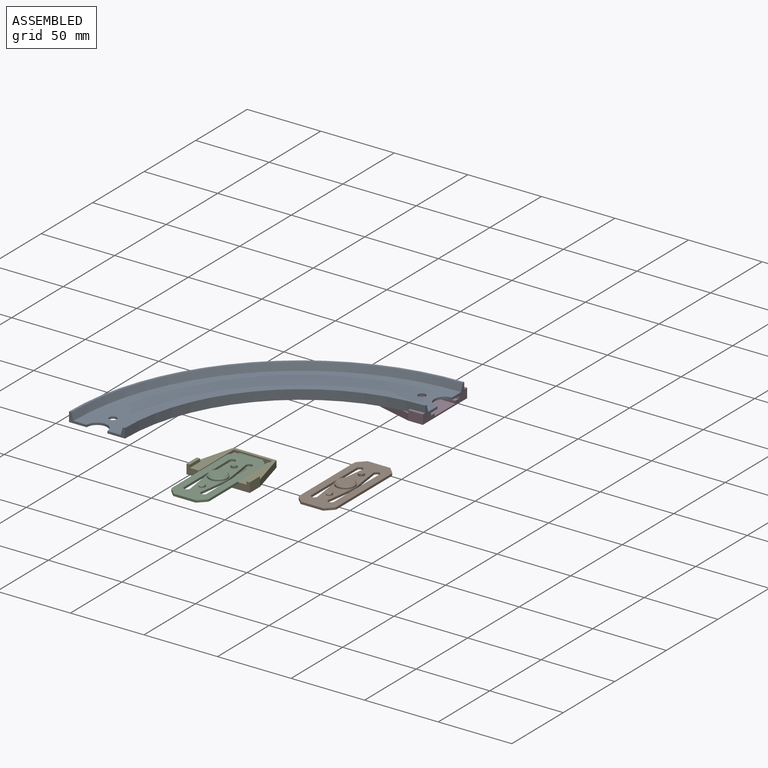
[diagram: assembled view]
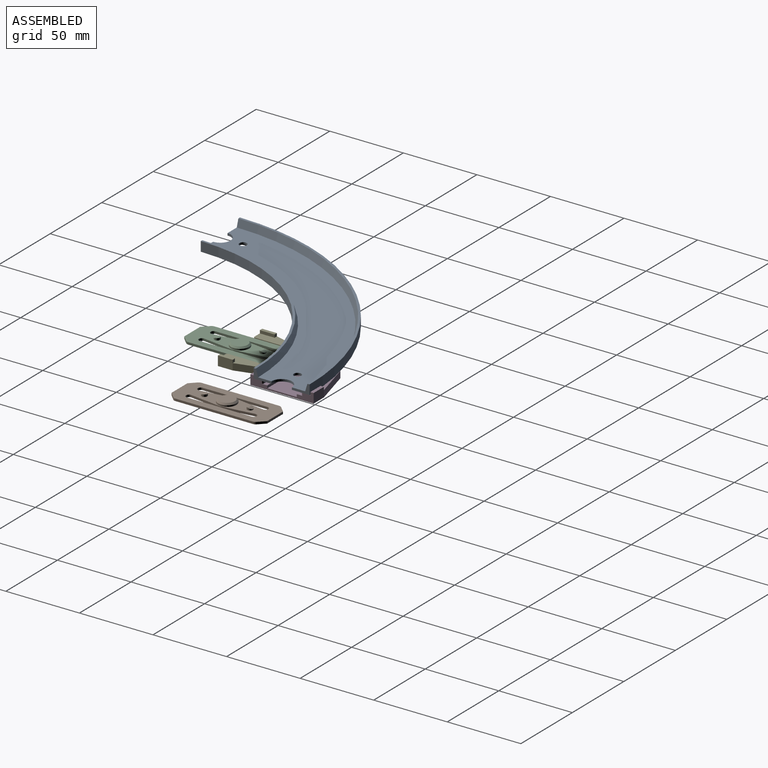
[diagram: assembled view, second angle]
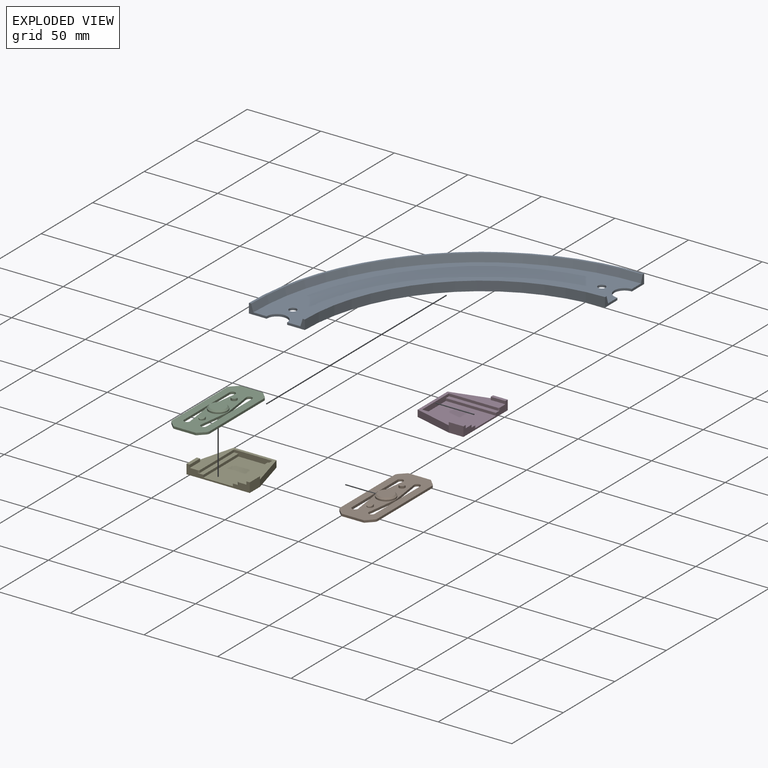
[diagram: exploded view]
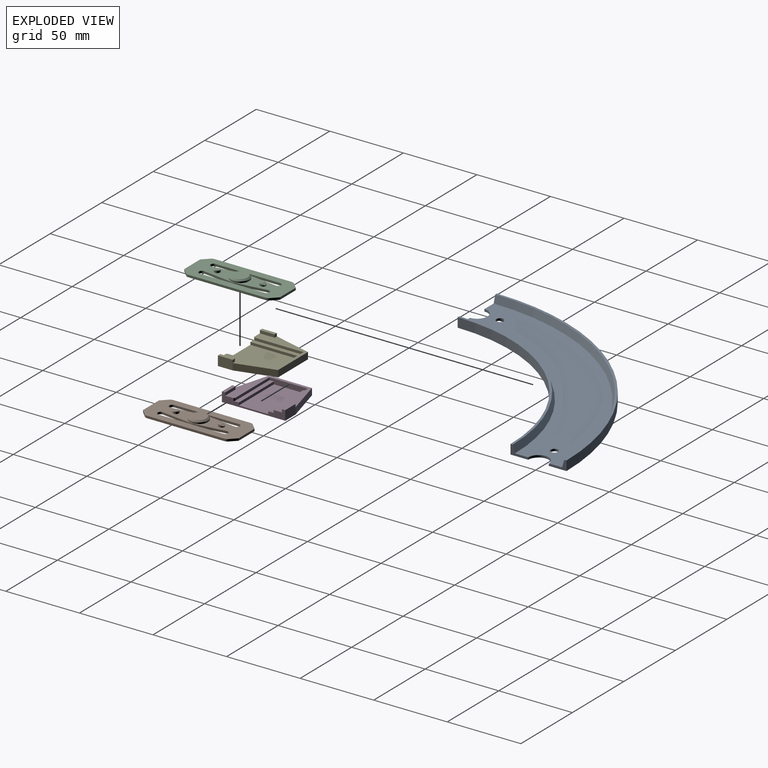
[diagram: exploded view, second angle]
ASSEMBLY  parts=5 mates=2
PART A: 16 faces, bbox 158x158x6.5 mm
  f0: plane 158x158mm, normal (0,0,-1), area 8103.7mm2, adj f2,f3,f4,f5,f6,f11,f12,f13
  f1: plane 155x155mm, normal (0,0,1), area 6793.7mm2, adj f2,f3,f4,f8,f9,f11,f12,f13
  f2: plane 12x6.5mm, normal (1,0,0), area 29.3mm2, adj f0,f1,f6,f7,f8,f13
  f3: plane 12x6.5mm, normal (1,0,0), area 29.2mm2, adj f0,f1,f5,f9,f10,f13
  f4: plane 12x6.5mm, normal (0,-1,0), area 29.3mm2, adj f0,f1,f6,f7,f8,f12
  f5: cylinder r=158mm len=158mm, axis (0,0,1), area 1613.2mm2, adj f0,f3,f10,f11
  f6: cylinder r=120mm len=120mm, axis (0,0,1), area 1225.2mm2, adj f0,f2,f4,f7
  f7: plane 121.5x121.5mm, normal (0,0,1), area 284.5mm2, adj f2,f4,f6,f8
  f8: cone r=121.5mm half-angle=16.7deg, axis (0,0,-1), area 1002.4mm2, adj f1,f2,f4,f7
  f9: cone r=155mm half-angle=16.7deg, axis (0,0,1), area 1277.1mm2, adj f1,f3,f10,f11
  f10: plane 158x158mm, normal (0,0,1), area 370.5mm2, adj f3,f5,f9,f11
  f11: plane 12x6.5mm, normal (0,-1,0), area 29.2mm2, adj f0,f1,f5,f9,f10,f12
  f12: cylinder r=7mm len=14mm, axis (0,0,1), area 33mm2, adj f0,f1,f4,f11
  f13: cylinder r=7mm len=14mm, axis (0,0,1), area 33mm2, adj f0,f1,f2,f3
  f14: cylinder r=2.5mm len=5mm, axis (0,0,1), area 23.6mm2, adj f0,f1
  f15: cylinder r=2.5mm len=5mm, axis (0,0,1), area 23.6mm2, adj f0,f1
PART B: 35 faces, bbox 25.4x65x3.5 mm
  f0: plane 15.4x1.5mm, normal (0,-1,0), area 23.1mm2, adj f1,f2,f27,f28
  f1: plane 65x25.4mm, normal (0,0,-1), area 1354.2mm2, adj f0,f3,f4,f5,f6,f7,f8,f9
  f2: plane 65x25.4mm, normal (0,0,1), area 1206.4mm2, adj f0,f3,f4,f5,f6,f7,f8,f9
  f3: plane 21.05x2.89mm, normal (0.99,-0.14,0), area 31.9mm2, adj f1,f2,f9,f30
  f4: plane 52.51x1.5mm, normal (-1,0,0), area 78.8mm2, adj f1,f2,f33,f34
  f5: plane 52.51x1.5mm, normal (1,0,0), area 78.8mm2, adj f1,f2,f31,f32
  f6: plane 44x1.5mm, normal (1,0,0), area 66mm2, adj f1,f2,f7,f12
  f7: cylinder r=2mm len=4mm, axis (0,0,-1), area 9.8mm2, adj f1,f2,f6,f8
  f8: plane 21.05x2.89mm, normal (-0.99,-0.14,0), area 31.9mm2, adj f1,f2,f7,f29
  f9: cylinder r=2mm len=4mm, axis (0,0,-1), area 9.8mm2, adj f1,f2,f3,f10
  f10: plane 44x1.5mm, normal (-1,0,0), area 66mm2, adj f1,f2,f9,f14
  f11: plane 15.4x1.5mm, normal (0,1,0), area 23.1mm2, adj f1,f2,f25,f26
  f12: cylinder r=2mm len=4mm, axis (0,0,-1), area 9.8mm2, adj f1,f2,f6,f13
  f13: plane 21.05x2.89mm, normal (-0.99,0.14,0), area 31.9mm2, adj f1,f2,f12,f29
  f14: cylinder r=2mm len=4mm, axis (0,0,-1), area 9.8mm2, adj f1,f2,f10,f15
  f15: plane 21.05x2.89mm, normal (0.99,0.14,0), area 31.9mm2, adj f1,f2,f14,f30
  f16: cylinder r=2mm len=4mm, axis (0,0,-1), area 15.1mm2, adj f2,f17,f23
  f17: plane 4x2mm, normal (0,0,1), area 6.3mm2, adj f16,f23
  f18: cylinder r=2mm len=4mm, axis (0,0,-1), area 15.1mm2, adj f2,f19,f22
  f19: plane 4x2mm, normal (0,0,1), area 6.3mm2, adj f18,f22
  f20: cylinder r=6.25mm len=12.5mm, axis (0,0,-1), area 39.3mm2, adj f2,f24
  f21: plane 10.5x10.5mm, normal (0,0,1), area 86.6mm2, adj f24
  f22: plane 4x2mm, normal (0,-0.42,0.91), area 6.9mm2, adj f18,f19
  f23: plane 4x2mm, normal (0,0.42,0.91), area 6.9mm2, adj f16,f17
  f24: cone r=5.25mm half-angle=45deg, axis (0,0,-1), area 51.1mm2, adj f20,f21
  f25: plane 4.12x4.12mm, normal (-0.71,0.71,0), area 8.7mm2, adj f1,f2,f11,f33
  f26: plane 4.12x4.12mm, normal (0.71,0.71,0), area 8.7mm2, adj f1,f2,f11,f31
  f27: plane 4.12x4.12mm, normal (0.71,-0.71,0), area 8.7mm2, adj f0,f1,f2,f32
  f28: plane 4.12x4.12mm, normal (-0.71,-0.71,0), area 8.7mm2, adj f0,f1,f2,f34
  f29: cylinder r=5mm len=1.5mm, axis (0,0,-1), area 2mm2, adj f1,f2,f8,f13
  f30: cylinder r=5mm len=1.5mm, axis (0,0,-1), area 2mm2, adj f1,f2,f3,f15
  f31: cylinder r=3mm len=2.12mm, axis (0,0,1), area 3.5mm2, adj f1,f2,f5,f26
  f32: cylinder r=3mm len=2.12mm, axis (0,0,1), area 3.5mm2, adj f1,f2,f5,f27
  f33: cylinder r=3mm len=2.12mm, axis (0,0,-1), area 3.5mm2, adj f1,f2,f4,f25
  f34: cylinder r=3mm len=2.12mm, axis (0,0,-1), area 3.5mm2, adj f1,f2,f4,f28
PART C: same geometry as B
PART D: 24 faces, bbox 43x36x6.5 mm
  f0: plane 43x36mm, normal (0,0,1), area 436.6mm2, adj f1,f4,f5,f6,f8,f10,f11,f16
  f1: plane 26x3.5mm, normal (0,-1,0), area 80.5mm2, adj f0,f2,f10,f11,f12,f13,f14,f15
  f2: plane 34x20mm, normal (0,0,1), area 680mm2, adj f1,f8,f13,f15
  f3: plane 10x6.5mm, normal (1,0,0), area 65mm2, adj f4,f8,f9,f20,f21
  f4: plane 26x7mm, normal (0.97,0.26,0), area 121.2mm2, adj f0,f3,f5,f9
  f5: plane 29x4.5mm, normal (0,1,0), area 130.5mm2, adj f0,f4,f6,f9
  f6: plane 26x7mm, normal (-0.97,0.26,0), area 121.2mm2, adj f0,f5,f7,f9
  f7: plane 10x6.5mm, normal (-1,0,0), area 65mm2, adj f6,f8,f9,f16,f18
  f8: plane 43x6.5mm, normal (0,-1,0), area 118.5mm2, adj f0,f2,f3,f7,f9,f12,f13,f14
  f9: plane 43x36mm, normal (0,0,-1), area 1366mm2, adj f3,f4,f5,f6,f7,f8
  f10: plane 33x1.75mm, normal (1,0,0), area 57.7mm2, adj f0,f1,f12,f22
  f11: plane 33x1.75mm, normal (-1,0,0), area 57.7mm2, adj f0,f1,f14,f23
  f12: plane 34x4mm, normal (0,0,1), area 102.2mm2, adj f1,f8,f10,f13,f22
  f13: plane 34x1.75mm, normal (1,0,0), area 59.5mm2, adj f1,f2,f8,f12
  f14: plane 34x4mm, normal (0,0,1), area 102.2mm2, adj f1,f8,f11,f15,f23
  f15: plane 34x1.75mm, normal (-1,0,0), area 59.5mm2, adj f1,f2,f8,f14
  f16: plane 2.25x2mm, normal (0,1,0), area 4.5mm2, adj f0,f7,f17,f18
  f17: plane 10x2mm, normal (1,0,0), area 20mm2, adj f0,f8,f16,f18
  f18: plane 10x2.25mm, normal (0,0,1), area 22.5mm2, adj f7,f8,f16,f17
  f19: plane 10x2mm, normal (-1,0,0), area 20mm2, adj f0,f8,f20,f21
  f20: plane 2.25x2mm, normal (0,1,0), area 4.5mm2, adj f0,f3,f19,f21
  f21: plane 10x2.25mm, normal (0,0,1), area 22.5mm2, adj f3,f8,f19,f20
  f22: cylinder r=1mm len=1.75mm, axis (0,0,-1), area 2.7mm2, adj f0,f8,f10,f12
  f23: cylinder r=1mm len=1.75mm, axis (0,0,1), area 2.7mm2, adj f0,f8,f11,f14
PART E: same geometry as D
PLACE A t=(13.88,-66.88,70.02)mm fixed
PLACE B t=(-14.01,15.62,33.3)mm
PLACE C t=(-76.19,-19.22,34.91)mm
PLACE D rot(axis=(0,0,1),90deg) t=(13.88,72.37,65.52)mm
PLACE E t=(-76.19,-19.22,32.16)mm
MATE fastened A.f2 <-> D.f8  axis (1,0,0) through (13.88,53.12,70.02)mm
MATE fastened E.f2 <-> C.f20  axis (0,0,1) through (-76.19,-19.22,33.16)mm
